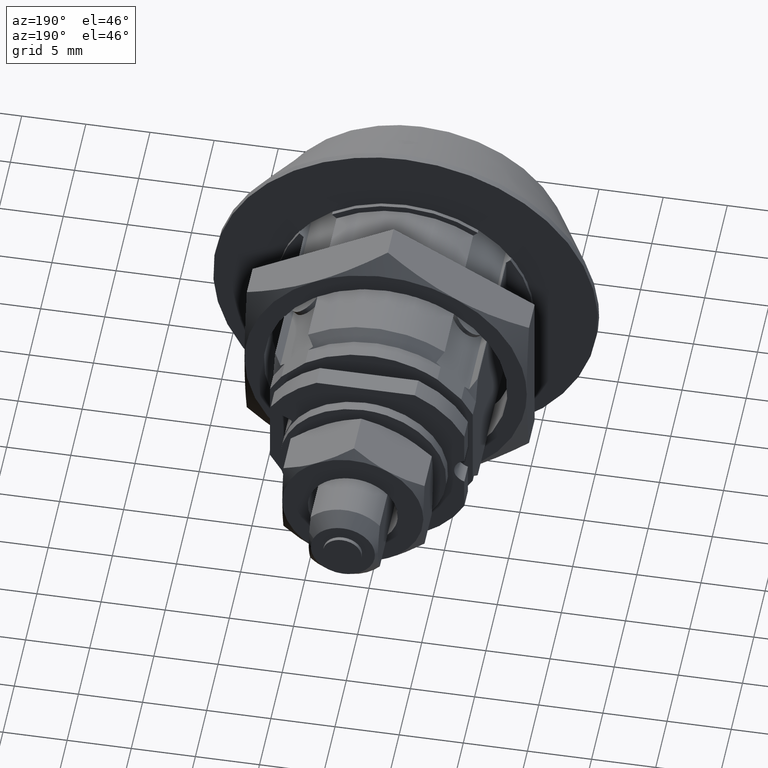
[diagram: clean part render]
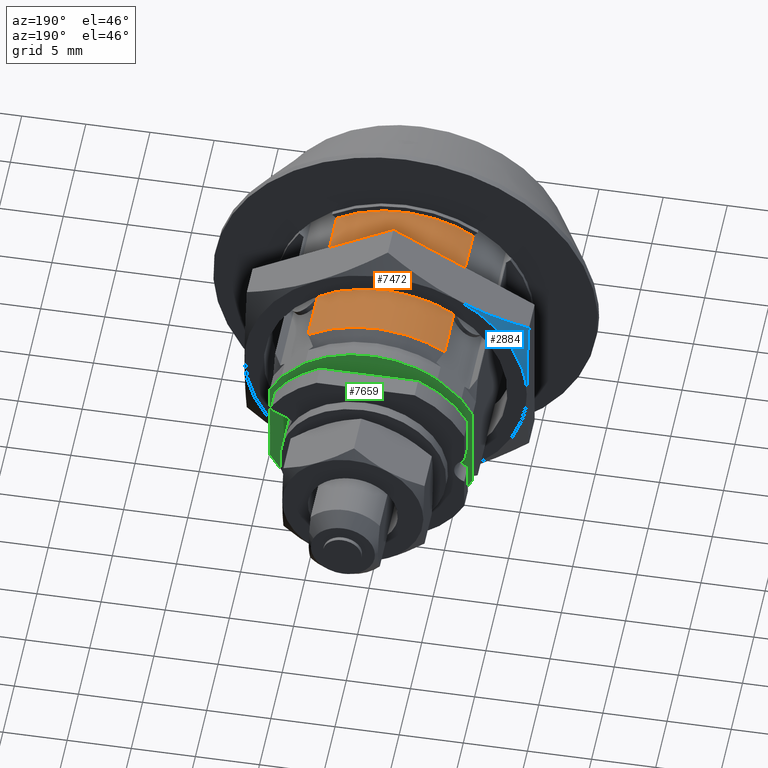
[diagram: same view with three faces highlighted in distinct colors, each labeled with its STEP entity id]
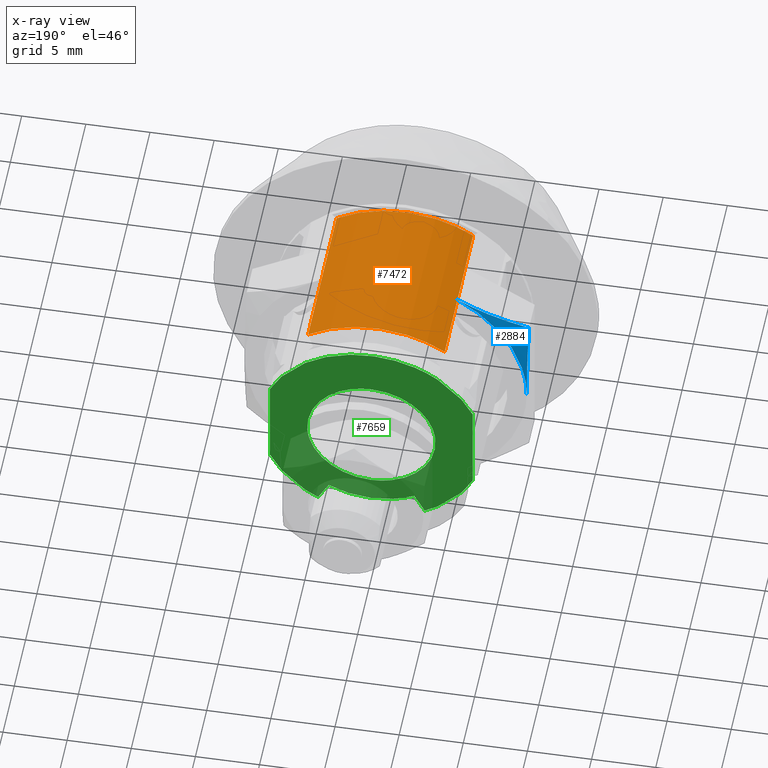
[diagram: x-ray of the same camera — body ghosted, the three highlighted faces saturated]
A machine part, auxiliary view with three faces highlighted in distinct colors.
The next image is the same camera in x-ray (body ghosted, the three faces saturated) — at least one of them is partly hidden behind the body in this view.
Their STEP definitions:

[orange] entity #7472 — the highlighted face is a freeform B-spline surface patch.
#5226=CARTESIAN_POINT('',(21.699999999999999,-5.323039460559990,7.868624460559890));
#5227=VERTEX_POINT('',#5226);
#5235=CARTESIAN_POINT('',(9.100000000000000,-5.323039460559990,7.868624460559890));
#5236=VERTEX_POINT('',#5235);
#5237=CARTESIAN_POINT('',(9.100000000000000,-5.323039460559990,7.868624460559890));
#5238=CARTESIAN_POINT('',(21.699999999999999,-5.323039460559990,7.868624460559890));
#5239=QUASI_UNIFORM_CURVE('',1,(#5237,#5238),.UNSPECIFIED.,.F.,.U.);
#5240=EDGE_CURVE('',#5236,#5227,#5239,.T.);
#7366=CARTESIAN_POINT('',(21.699999999999999,5.323039460559990,7.868624460559890));
#7367=VERTEX_POINT('',#7366);
#7375=CARTESIAN_POINT('',(21.699999999999999,-5.323039460559983,7.868624460559881));
#7376=CARTESIAN_POINT('',(21.700000000000006,-2.602085E-015,11.469603162835195));
#7377=CARTESIAN_POINT('',(21.699999999999999,5.323039460559979,7.868624460559885));
#7385=(BOUNDED_CURVE()B_SPLINE_CURVE(2,(#7375,#7376,#7377),.UNSPECIFIED.,.F.,.U.)CURVE()GEOMETRIC_REPRESENTATION_ITEM()QUASI_UNIFORM_CURVE()RATIONAL_B_SPLINE_CURVE((1.0,0.828276259006304,1.0))REPRESENTATION_ITEM(''));
#7386=EDGE_CURVE('',#5227,#7367,#7385,.T.);
#7434=CARTESIAN_POINT('',(22.015000000000001,5.391502606206472,7.821873154639417));
#7435=CARTESIAN_POINT('',(8.777125000000000,5.391502606206472,7.821873154639417));
#7436=CARTESIAN_POINT('',(22.015000000000001,-0.276855338878359,11.728989267320085));
#7437=CARTESIAN_POINT('',(8.777125000000000,-0.276855338878359,11.728989267320085));
#7438=CARTESIAN_POINT('',(22.015000000000001,-5.754553093988285,7.558777592208267));
#7439=CARTESIAN_POINT('',(8.777124999999998,-5.754553093988285,7.558777592208267));
#7447=(BOUNDED_SURFACE()B_SPLINE_SURFACE(1,2,((#7434,#7436,#7438),(#7435,#7437,#7439)),.UNSPECIFIED.,.F.,.F.,.U.)B_SPLINE_SURFACE_WITH_KNOTS((2,2),(3,3),(0.0,13.237875000000010),(0.0,12.321328410030731),.UNSPECIFIED.)GEOMETRIC_REPRESENTATION_ITEM()RATIONAL_B_SPLINE_SURFACE(((1.0,0.809413199507940,0.999209233634286),(1.0,0.809413199507940,0.999209233634286)))REPRESENTATION_ITEM('')SURFACE());
#7448=ORIENTED_EDGE('',*,*,#7386,.T.);
#7449=CARTESIAN_POINT('',(9.100000000000110,5.323039460559990,7.868624460559890));
#7450=VERTEX_POINT('',#7449);
#7451=CARTESIAN_POINT('',(21.699999999999999,5.323039460559990,7.868624460559890));
#7452=CARTESIAN_POINT('',(9.100000000000110,5.323039460559990,7.868624460559890));
#7453=QUASI_UNIFORM_CURVE('',1,(#7451,#7452),.UNSPECIFIED.,.F.,.U.);
#7454=EDGE_CURVE('',#7367,#7450,#7453,.T.);
#7455=ORIENTED_EDGE('',*,*,#7454,.T.);
#7456=CARTESIAN_POINT('',(9.100000000000000,-5.323039460559983,7.868624460559881));
#7457=CARTESIAN_POINT('',(9.100000000000000,-2.602085E-015,11.469603162835195));
#7458=CARTESIAN_POINT('',(9.100000000000110,5.323039460559990,7.868624460559890));
#7466=(BOUNDED_CURVE()B_SPLINE_CURVE(2,(#7456,#7457,#7458),.UNSPECIFIED.,.F.,.U.)CURVE()GEOMETRIC_REPRESENTATION_ITEM()QUASI_UNIFORM_CURVE()RATIONAL_B_SPLINE_CURVE((1.0,0.828276259006304,1.0))REPRESENTATION_ITEM(''));
#7467=EDGE_CURVE('',#5236,#7450,#7466,.T.);
#7468=ORIENTED_EDGE('',*,*,#7467,.F.);
#7469=ORIENTED_EDGE('',*,*,#5240,.T.);
#7470=EDGE_LOOP('',(#7448,#7455,#7468,#7469));
#7471=FACE_OUTER_BOUND('',#7470,.T.);
#7472=ADVANCED_FACE('',(#7471),#7447,.T.);

[blue] entity #2884 — the highlighted face is a freeform B-spline surface patch.
#2774=CARTESIAN_POINT('',(17.600000000000001,11.0,0.0));
#2775=VERTEX_POINT('',#2774);
#2822=CARTESIAN_POINT('',(17.624562010429550,10.953702502273449,-0.286832823699471));
#2823=CARTESIAN_POINT('',(16.592343522127969,12.740944715189560,-0.333633412857267));
#2824=CARTESIAN_POINT('',(17.624562010429550,11.134202096123261,6.606167870264254));
#2825=CARTESIAN_POINT('',(16.592343522127972,12.950895217850862,7.684051999479551));
#2826=CARTESIAN_POINT('',(17.624562010429550,4.997880854932755,9.751259330822848));
#2827=CARTESIAN_POINT('',(16.592343522127969,5.813351572455635,11.342306951617877));
#2835=(BOUNDED_SURFACE()B_SPLINE_SURFACE(1,2,((#2822,#2824,#2826),(#2823,#2825,#2827)),.UNSPECIFIED.,.F.,.F.,.U.)B_SPLINE_SURFACE_WITH_KNOTS((2,2),(3,3),(0.0,2.064436976603163),(0.0,14.706042066350280),.UNSPECIFIED.)GEOMETRIC_REPRESENTATION_ITEM()RATIONAL_B_SPLINE_SURFACE(((1.0,0.842884116773217,0.991792998497956),(1.0,0.842884116773217,0.991792998497956)))REPRESENTATION_ITEM('')SURFACE());
#2836=CARTESIAN_POINT('',(17.600000000000001,5.500000025275499,9.526279427036011));
#2837=VERTEX_POINT('',#2836);
#2838=CARTESIAN_POINT('',(17.600000000000001,5.500000025275497,9.526279427036009));
#2839=CARTESIAN_POINT('',(17.599999999999998,11.0,6.350852941628797));
#2840=CARTESIAN_POINT('',(17.600000000000001,11.0,0.0));
#2848=(BOUNDED_CURVE()B_SPLINE_CURVE(2,(#2838,#2839,#2840),.UNSPECIFIED.,.F.,.U.)CURVE()GEOMETRIC_REPRESENTATION_ITEM()QUASI_UNIFORM_CURVE()RATIONAL_B_SPLINE_CURVE((1.0,0.866025404447748,1.0))REPRESENTATION_ITEM(''));
#2849=EDGE_CURVE('',#2837,#2775,#2848,.T.);
#2850=ORIENTED_EDGE('',*,*,#2849,.T.);
#2851=CARTESIAN_POINT('',(16.617519582818250,10.999999999999799,6.350853116742670));
#2852=VERTEX_POINT('',#2851);
#2853=CARTESIAN_POINT('',(16.617519582818261,10.999999999999799,6.350853116742674));
#2854=CARTESIAN_POINT('',(16.913871360255470,10.999999999999799,5.324260464744524));
#2855=CARTESIAN_POINT('',(17.160687656450179,10.999999999999799,4.284205776588201));
#2856=CARTESIAN_POINT('',(17.375908638015190,10.999999999999799,2.958781858872818));
#2857=CARTESIAN_POINT('',(17.433449356142830,10.999999999999799,2.559245374102158));
#2858=CARTESIAN_POINT('',(17.479547030898470,10.999999999999799,2.156599064620613));
#2859=CARTESIAN_POINT('',(17.507640667951581,10.999999999999810,1.887451234463407));
#2860=CARTESIAN_POINT('',(17.520380349742240,10.999999999999799,1.752365500623639));
#2861=CARTESIAN_POINT('',(17.577088102943321,10.999999999999799,1.077148417609223));
#2862=CARTESIAN_POINT('',(17.599946011395470,10.999999999999799,0.538671276146965));
#2863=CARTESIAN_POINT('',(17.599999967988960,10.999999999999799,0.001275297158494));
#2864=CARTESIAN_POINT('',(17.599999999841589,10.999999999999799,0.000637647574730));
#2865=CARTESIAN_POINT('',(17.600000000000001,11.0,0.0));
#2866=B_SPLINE_CURVE_WITH_KNOTS('',3,(#2853,#2854,#2855,#2856,#2857,#2858,#2859,#2860,#2861,#2862,#2863,#2864,#2865),.UNSPECIFIED.,.F.,.U.,(4,2,1,2,2,2,4),(0.499851503931919,0.749851503931919,0.812351503931919,0.843601503931919,0.874851503931919,0.999851503931919,1.0),.UNSPECIFIED.);
#2867=EDGE_CURVE('',#2852,#2775,#2866,.T.);
#2868=ORIENTED_EDGE('',*,*,#2867,.F.);
#2869=CARTESIAN_POINT('',(17.600000000000001,5.500000025275499,9.526279427036011));
#2870=CARTESIAN_POINT('',(17.599998683348229,5.730331192962631,9.393297722925393));
#2871=CARTESIAN_POINT('',(17.594388911942200,5.961779331121220,9.259671077237309));
#2872=CARTESIAN_POINT('',(17.571955330659360,6.426112111137877,8.991588420058477));
#2873=CARTESIAN_POINT('',(17.554988363925439,6.659218304332838,8.857004495842949));
#2874=CARTESIAN_POINT('',(17.487826523366898,7.356204240256162,8.454599475650541));
#2875=CARTESIAN_POINT('',(17.421332692143672,7.817745885750807,8.188128280749213));
#2876=CARTESIAN_POINT('',(17.164569403790949,9.194153707334964,7.393458849573638));
#2877=CARTESIAN_POINT('',(16.917241350279362,10.100834786482491,6.869986281251154));
#2878=CARTESIAN_POINT('',(16.617519582818250,10.999999999999799,6.350853116742670));
#2879=B_SPLINE_CURVE_WITH_KNOTS('',3,(#2869,#2870,#2871,#2872,#2873,#2874,#2875,#2876,#2877,#2878),.UNSPECIFIED.,.F.,.U.,(4,2,2,2,4),(0.500936501885464,0.562499999999999,0.624999999999999,0.749999999999999,1.0),.UNSPECIFIED.);
#2880=EDGE_CURVE('',#2837,#2852,#2879,.T.);
#2881=ORIENTED_EDGE('',*,*,#2880,.F.);
#2882=EDGE_LOOP('',(#2850,#2868,#2881));
#2883=FACE_OUTER_BOUND('',#2882,.T.);
#2884=ADVANCED_FACE('',(#2883),#2835,.T.);

[green] entity #7659 — the highlighted face is a freeform B-spline surface patch.
#3764=CARTESIAN_POINT('',(23.900000000000009,-4.990674561718299,-0.305233384364819));
#3765=VERTEX_POINT('',#3764);
#3771=CARTESIAN_POINT('',(23.899999999999999,0.0,-5.0));
#3772=VERTEX_POINT('',#3771);
#3773=CARTESIAN_POINT('',(23.899999999999999,0.0,-5.0));
#3774=CARTESIAN_POINT('',(23.899999999999995,-4.703539128395961,-5.000000000000001));
#3775=CARTESIAN_POINT('',(23.900000000000009,-4.990674561718299,-0.305233384364818));
#3783=(BOUNDED_CURVE()B_SPLINE_CURVE(2,(#3773,#3774,#3775),.UNSPECIFIED.,.F.,.U.)B_SPLINE_CURVE_WITH_KNOTS((3,3),(0.500000000000000,0.739333284238965),.UNSPECIFIED.)CURVE()GEOMETRIC_REPRESENTATION_ITEM()RATIONAL_B_SPLINE_CURVE((1.0,0.719603616040219,0.976072731775032))REPRESENTATION_ITEM(''));
#3784=EDGE_CURVE('',#3772,#3765,#3783,.T.);
#3786=CARTESIAN_POINT('',(23.899999999999999,4.965047834704235,0.590169466421157));
#3787=VERTEX_POINT('',#3786);
#3788=CARTESIAN_POINT('',(23.900000000000006,4.965047834704235,0.590169466421157));
#3789=CARTESIAN_POINT('',(23.900000000000002,4.999999999999999,0.296119735805910));
#3790=CARTESIAN_POINT('',(23.899999999999999,5.0,0.0));
#3791=CARTESIAN_POINT('',(23.899999999999991,5.000000000000001,-5.000000000000001));
#3792=CARTESIAN_POINT('',(23.899999999999999,0.0,-5.0));
#3800=(BOUNDED_CURVE()B_SPLINE_CURVE(2,(#3788,#3789,#3790,#3791,#3792),.UNSPECIFIED.,.F.,.U.)B_SPLINE_CURVE_WITH_KNOTS((3,2,3),(0.229562531614853,0.250000000000000,0.500000000000000),.UNSPECIFIED.)CURVE()GEOMETRIC_REPRESENTATION_ITEM()RATIONAL_B_SPLINE_CURVE((0.956026868064744,0.976056016401104,1.0,0.707106781186548,1.0))REPRESENTATION_ITEM(''));
#3801=EDGE_CURVE('',#3787,#3772,#3800,.T.);
#3831=CARTESIAN_POINT('',(23.899999999999999,0.0,5.0));
#3832=VERTEX_POINT('',#3831);
#3833=CARTESIAN_POINT('',(23.899999999999999,0.0,5.0));
#3834=CARTESIAN_POINT('',(23.899999999999995,4.440874167168260,4.999999999999999));
#3835=CARTESIAN_POINT('',(23.900000000000006,4.965047834704235,0.590169466421157));
#3843=(BOUNDED_CURVE()B_SPLINE_CURVE(2,(#3833,#3834,#3835),.UNSPECIFIED.,.F.,.U.)B_SPLINE_CURVE_WITH_KNOTS((3,3),(0.0,0.229562531614853),.UNSPECIFIED.)CURVE()GEOMETRIC_REPRESENTATION_ITEM()RATIONAL_B_SPLINE_CURVE((1.0,0.731050764785443,0.956026868064744))REPRESENTATION_ITEM(''));
#3844=EDGE_CURVE('',#3832,#3787,#3843,.T.);
#3846=CARTESIAN_POINT('',(23.900000000000009,-4.990674561718299,-0.305233384364818));
#3847=CARTESIAN_POINT('',(23.900000000000006,-5.0,-0.152759146782070));
#3848=CARTESIAN_POINT('',(23.899999999999999,-5.0,0.0));
#3849=CARTESIAN_POINT('',(23.899999999999991,-5.000000000000001,5.000000000000001));
#3850=CARTESIAN_POINT('',(23.899999999999999,0.0,5.0));
#3858=(BOUNDED_CURVE()B_SPLINE_CURVE(2,(#3846,#3847,#3848,#3849,#3850),.UNSPECIFIED.,.F.,.U.)B_SPLINE_CURVE_WITH_KNOTS((3,2,3),(0.739333284238965,0.750000000000000,1.0),.UNSPECIFIED.)CURVE()GEOMETRIC_REPRESENTATION_ITEM()RATIONAL_B_SPLINE_CURVE((0.976072731775032,0.987503165146329,1.0,0.707106781186548,1.0))REPRESENTATION_ITEM(''));
#3859=EDGE_CURVE('',#3765,#3832,#3858,.T.);
#5376=CARTESIAN_POINT('',(23.899999999999999,-3.340111194305860,-6.151719857866800));
#5377=VERTEX_POINT('',#5376);
#5378=CARTESIAN_POINT('',(23.899999999999999,3.340111580465450,-6.151719648199240));
#5379=VERTEX_POINT('',#5378);
#5380=CARTESIAN_POINT('',(23.899999999999999,-3.340111194305862,-6.151719857866796));
#5381=CARTESIAN_POINT('',(23.899999999999999,0.000000249999890,-7.965252314337170));
#5382=CARTESIAN_POINT('',(23.899999999999999,3.340111580465447,-6.151719648199243));
#5390=(BOUNDED_CURVE()B_SPLINE_CURVE(2,(#5380,#5381,#5382),.UNSPECIFIED.,.F.,.U.)CURVE()GEOMETRIC_REPRESENTATION_ITEM()QUASI_UNIFORM_CURVE()RATIONAL_B_SPLINE_CURVE((1.0,0.878817107576146,1.0))REPRESENTATION_ITEM(''));
#5391=EDGE_CURVE('',#5377,#5379,#5390,.T.);
#5414=CARTESIAN_POINT('',(23.899999999999999,4.151281384688645,-7.645708787623000));
#5415=VERTEX_POINT('',#5414);
#5421=CARTESIAN_POINT('',(23.899999999999999,4.151281384688645,-7.645708787623000));
#5422=CARTESIAN_POINT('',(23.899999999999999,3.340111580465450,-6.151719648199240));
#5423=QUASI_UNIFORM_CURVE('',1,(#5421,#5422),.UNSPECIFIED.,.F.,.U.);
#5424=EDGE_CURVE('',#5415,#5379,#5423,.T.);
#5435=CARTESIAN_POINT('',(23.899999999999999,-4.151280998528985,-7.645708997290590));
#5436=VERTEX_POINT('',#5435);
#5445=CARTESIAN_POINT('',(23.899999999999999,-3.340111194305860,-6.151719857866800));
#5446=CARTESIAN_POINT('',(23.899999999999999,-4.151280998528985,-7.645708997290590));
#5447=QUASI_UNIFORM_CURVE('',1,(#5445,#5446),.UNSPECIFIED.,.F.,.U.);
#5448=EDGE_CURVE('',#5377,#5436,#5447,.T.);
#5549=CARTESIAN_POINT('',(23.899999999999999,7.900000000000000,3.644173431657505));
#5550=VERTEX_POINT('',#5549);
#5556=CARTESIAN_POINT('',(23.899999999999999,7.900000000000000,-3.644173431657505));
#5557=VERTEX_POINT('',#5556);
#5558=CARTESIAN_POINT('',(23.899999999999999,7.900000000000000,3.644173431657505));
#5559=CARTESIAN_POINT('',(23.899999999999999,7.900000000000000,-3.644173431657505));
#5560=QUASI_UNIFORM_CURVE('',1,(#5558,#5559),.UNSPECIFIED.,.F.,.U.);
#5561=EDGE_CURVE('',#5550,#5557,#5560,.T.);
#5621=CARTESIAN_POINT('',(23.899999999999999,-7.900000000000120,-3.644173431657195));
#5622=VERTEX_POINT('',#5621);
#5628=CARTESIAN_POINT('',(23.899999999999999,-7.900000000000120,3.644173431657195));
#5629=VERTEX_POINT('',#5628);
#5630=CARTESIAN_POINT('',(23.899999999999999,-7.900000000000120,-3.644173431657195));
#5631=CARTESIAN_POINT('',(23.899999999999999,-7.900000000000120,3.644173431657195));
#5632=QUASI_UNIFORM_CURVE('',1,(#5630,#5631),.UNSPECIFIED.,.F.,.U.);
#5633=EDGE_CURVE('',#5622,#5629,#5632,.T.);
#6459=CARTESIAN_POINT('',(23.899999999999999,-7.011172080091100,-5.151064556317370));
#6460=VERTEX_POINT('',#6459);
#6468=CARTESIAN_POINT('',(23.899999999999999,-7.011172080091103,-5.151064556317373));
#6469=CARTESIAN_POINT('',(23.900000000000006,-7.531727635400529,-4.442530517262147));
#6470=CARTESIAN_POINT('',(23.899999999999999,-7.900000000000122,-3.644173431657193));
#6478=(BOUNDED_CURVE()B_SPLINE_CURVE(2,(#6468,#6469,#6470),.UNSPECIFIED.,.F.,.U.)CURVE()GEOMETRIC_REPRESENTATION_ITEM()QUASI_UNIFORM_CURVE()RATIONAL_B_SPLINE_CURVE((1.0,0.994932436799495,1.0))REPRESENTATION_ITEM(''));
#6479=EDGE_CURVE('',#6460,#5622,#6478,.T.);
#6555=CARTESIAN_POINT('',(23.899999999999999,-7.011172080091180,5.151064556317439));
#6556=VERTEX_POINT('',#6555);
#6557=CARTESIAN_POINT('',(23.899999999999999,-7.900000000000124,3.644173431657190));
#6558=CARTESIAN_POINT('',(23.900000000000006,-7.531727635400528,4.442530517262149));
#6559=CARTESIAN_POINT('',(23.899999999999999,-7.011172080091180,5.151064556317439));
#6567=(BOUNDED_CURVE()B_SPLINE_CURVE(2,(#6557,#6558,#6559),.UNSPECIFIED.,.F.,.U.)CURVE()GEOMETRIC_REPRESENTATION_ITEM()QUASI_UNIFORM_CURVE()RATIONAL_B_SPLINE_CURVE((1.0,0.994932436799495,1.0))REPRESENTATION_ITEM(''));
#6568=EDGE_CURVE('',#5629,#6556,#6567,.T.);
#6697=CARTESIAN_POINT('',(23.899999999999999,-5.151064556317439,7.011172080091180));
#6698=VERTEX_POINT('',#6697);
#6699=CARTESIAN_POINT('',(23.899999999999999,-7.011172080091180,5.151064556317439));
#6700=CARTESIAN_POINT('',(23.899999999999999,-5.151064556317439,7.011172080091180));
#6701=QUASI_UNIFORM_CURVE('',1,(#6699,#6700),.UNSPECIFIED.,.F.,.U.);
#6702=EDGE_CURVE('',#6556,#6698,#6701,.T.);
#7151=CARTESIAN_POINT('',(23.899999999999999,7.011172080090720,-5.151064556317900));
#7152=VERTEX_POINT('',#7151);
#7153=CARTESIAN_POINT('',(23.899999999999999,7.899999999999982,-3.644173431657496));
#7154=CARTESIAN_POINT('',(23.899999999999999,7.531727635400288,-4.442530517262586));
#7155=CARTESIAN_POINT('',(23.899999999999999,7.011172080090717,-5.151064556317897));
#7163=(BOUNDED_CURVE()B_SPLINE_CURVE(2,(#7153,#7154,#7155),.UNSPECIFIED.,.F.,.U.)CURVE()GEOMETRIC_REPRESENTATION_ITEM()QUASI_UNIFORM_CURVE()RATIONAL_B_SPLINE_CURVE((1.0,0.994932436799493,1.0))REPRESENTATION_ITEM(''));
#7164=EDGE_CURVE('',#5557,#7152,#7163,.T.);
#7191=CARTESIAN_POINT('',(23.899999999999999,5.151064556317889,-7.011172080090720));
#7192=VERTEX_POINT('',#7191);
#7198=CARTESIAN_POINT('',(23.899999999999999,5.151064556317889,-7.011172080090723));
#7199=CARTESIAN_POINT('',(23.900000000000002,4.672814652921837,-7.362539312032060));
#7200=CARTESIAN_POINT('',(23.899999999999999,4.151281384688645,-7.645708787623003));
#7208=(BOUNDED_CURVE()B_SPLINE_CURVE(2,(#7198,#7199,#7200),.UNSPECIFIED.,.F.,.U.)CURVE()GEOMETRIC_REPRESENTATION_ITEM()QUASI_UNIFORM_CURVE()RATIONAL_B_SPLINE_CURVE((1.0,0.997681611613681,1.0))REPRESENTATION_ITEM(''));
#7209=EDGE_CURVE('',#7192,#5415,#7208,.T.);
#7214=CARTESIAN_POINT('',(23.899999999999999,-5.151064556317439,-7.011172080091180));
#7215=VERTEX_POINT('',#7214);
#7216=CARTESIAN_POINT('',(23.899999999999999,-4.151280998528981,-7.645708997290592));
#7217=CARTESIAN_POINT('',(23.899999999999999,-4.672814475042087,-7.362539442719154));
#7218=CARTESIAN_POINT('',(23.899999999999999,-5.151064556317439,-7.011172080091180));
#7226=(BOUNDED_CURVE()B_SPLINE_CURVE(2,(#7216,#7217,#7218),.UNSPECIFIED.,.F.,.U.)CURVE()GEOMETRIC_REPRESENTATION_ITEM()QUASI_UNIFORM_CURVE()RATIONAL_B_SPLINE_CURVE((1.0,0.997681609895080,1.0))REPRESENTATION_ITEM(''));
#7227=EDGE_CURVE('',#5436,#7215,#7226,.T.);
#7251=CARTESIAN_POINT('',(23.899999999999999,5.151064556317439,7.011172080091180));
#7252=VERTEX_POINT('',#7251);
#7253=CARTESIAN_POINT('',(23.899999999999999,-5.151064556317439,7.011172080091180));
#7254=CARTESIAN_POINT('',(23.900000000000006,-1.734723E-015,10.795627198329242));
#7255=CARTESIAN_POINT('',(23.899999999999999,5.151064556317439,7.011172080091180));
#7263=(BOUNDED_CURVE()B_SPLINE_CURVE(2,(#7253,#7254,#7255),.UNSPECIFIED.,.F.,.U.)CURVE()GEOMETRIC_REPRESENTATION_ITEM()QUASI_UNIFORM_CURVE()RATIONAL_B_SPLINE_CURVE((1.0,0.805881848286343,1.0))REPRESENTATION_ITEM(''));
#7264=EDGE_CURVE('',#6698,#7252,#7263,.T.);
#7319=CARTESIAN_POINT('',(23.899999999999999,7.011172080091180,5.151064556317439));
#7320=VERTEX_POINT('',#7319);
#7326=CARTESIAN_POINT('',(23.899999999999999,7.011172080091180,5.151064556317439));
#7327=CARTESIAN_POINT('',(23.900000000000002,7.531727635400426,4.442530517262288));
#7328=CARTESIAN_POINT('',(23.899999999999999,7.899999999999982,3.644173431657497));
#7336=(BOUNDED_CURVE()B_SPLINE_CURVE(2,(#7326,#7327,#7328),.UNSPECIFIED.,.F.,.U.)CURVE()GEOMETRIC_REPRESENTATION_ITEM()QUASI_UNIFORM_CURVE()RATIONAL_B_SPLINE_CURVE((1.0,0.994932436799497,1.0))REPRESENTATION_ITEM(''));
#7337=EDGE_CURVE('',#7320,#5550,#7336,.T.);
#7618=CARTESIAN_POINT('',(23.899999999999999,-8.689210117695758,9.516467979291608));
#7619=CARTESIAN_POINT('',(23.899999999999999,-8.689210117695758,-8.462177561150378));
#7620=CARTESIAN_POINT('',(23.899999999999999,8.689210400221652,9.516467979291608));
#7621=CARTESIAN_POINT('',(23.899999999999999,8.689210400221652,-8.462177561150378));
#7622=B_SPLINE_SURFACE_WITH_KNOTS('',1,1,((#7618,#7620),(#7619,#7621)),.UNSPECIFIED.,.F.,.F.,.U.,(2,2),(2,2),(0.0,17.978645540441988),(0.0,17.378420517917409),.UNSPECIFIED.);
#7623=ORIENTED_EDGE('',*,*,#7337,.F.);
#7624=CARTESIAN_POINT('',(23.899999999999999,5.151064556317439,7.011172080091180));
#7625=CARTESIAN_POINT('',(23.899999999999999,7.011172080091180,5.151064556317439));
#7626=QUASI_UNIFORM_CURVE('',1,(#7624,#7625),.UNSPECIFIED.,.F.,.U.);
#7627=EDGE_CURVE('',#7252,#7320,#7626,.T.);
#7628=ORIENTED_EDGE('',*,*,#7627,.F.);
#7629=ORIENTED_EDGE('',*,*,#7264,.F.);
#7630=ORIENTED_EDGE('',*,*,#6702,.F.);
#7631=ORIENTED_EDGE('',*,*,#6568,.F.);
#7632=ORIENTED_EDGE('',*,*,#5633,.F.);
#7633=ORIENTED_EDGE('',*,*,#6479,.F.);
#7634=CARTESIAN_POINT('',(23.899999999999999,-7.011172080091100,-5.151064556317370));
#7635=CARTESIAN_POINT('',(23.899999999999999,-5.151064556317439,-7.011172080091180));
#7636=QUASI_UNIFORM_CURVE('',1,(#7634,#7635),.UNSPECIFIED.,.F.,.U.);
#7637=EDGE_CURVE('',#6460,#7215,#7636,.T.);
#7638=ORIENTED_EDGE('',*,*,#7637,.T.);
#7639=ORIENTED_EDGE('',*,*,#7227,.F.);
#7640=ORIENTED_EDGE('',*,*,#5448,.F.);
#7641=ORIENTED_EDGE('',*,*,#5391,.T.);
#7642=ORIENTED_EDGE('',*,*,#5424,.F.);
#7643=ORIENTED_EDGE('',*,*,#7209,.F.);
#7644=CARTESIAN_POINT('',(23.899999999999999,7.011172080090720,-5.151064556317900));
#7645=CARTESIAN_POINT('',(23.899999999999999,5.151064556317889,-7.011172080090720));
#7646=QUASI_UNIFORM_CURVE('',1,(#7644,#7645),.UNSPECIFIED.,.F.,.U.);
#7647=EDGE_CURVE('',#7152,#7192,#7646,.T.);
#7648=ORIENTED_EDGE('',*,*,#7647,.F.);
#7649=ORIENTED_EDGE('',*,*,#7164,.F.);
#7650=ORIENTED_EDGE('',*,*,#5561,.F.);
#7651=EDGE_LOOP('',(#7623,#7628,#7629,#7630,#7631,#7632,#7633,#7638,#7639,#7640,#7641,#7642,#7643,#7648,#7649,#7650));
#7652=FACE_OUTER_BOUND('',#7651,.T.);
#7653=ORIENTED_EDGE('',*,*,#3784,.T.);
#7654=ORIENTED_EDGE('',*,*,#3859,.T.);
#7655=ORIENTED_EDGE('',*,*,#3844,.T.);
#7656=ORIENTED_EDGE('',*,*,#3801,.T.);
#7657=EDGE_LOOP('',(#7653,#7654,#7655,#7656));
#7658=FACE_BOUND('',#7657,.T.);
#7659=ADVANCED_FACE('',(#7652,#7658),#7622,.T.);